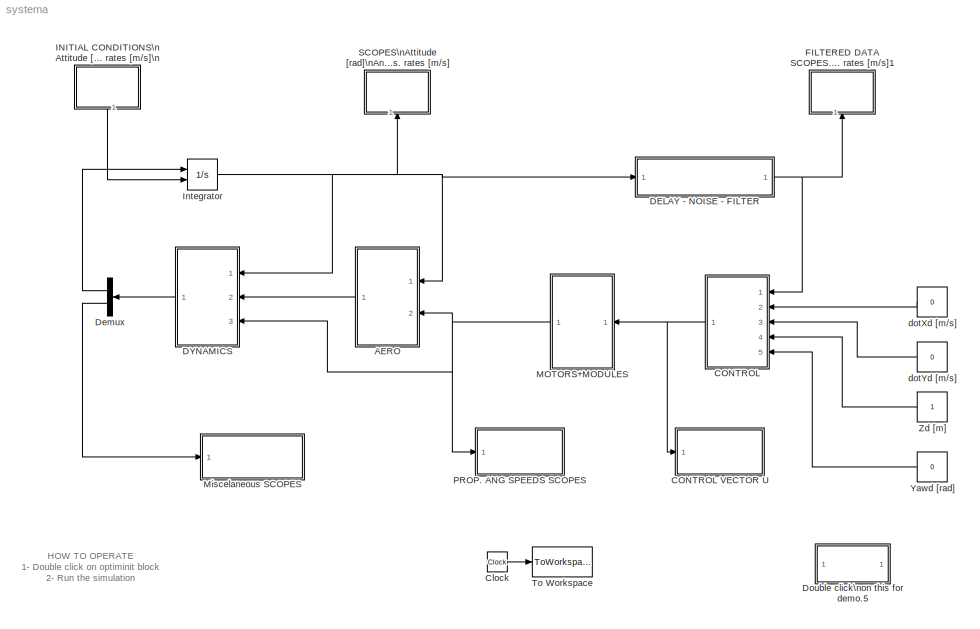
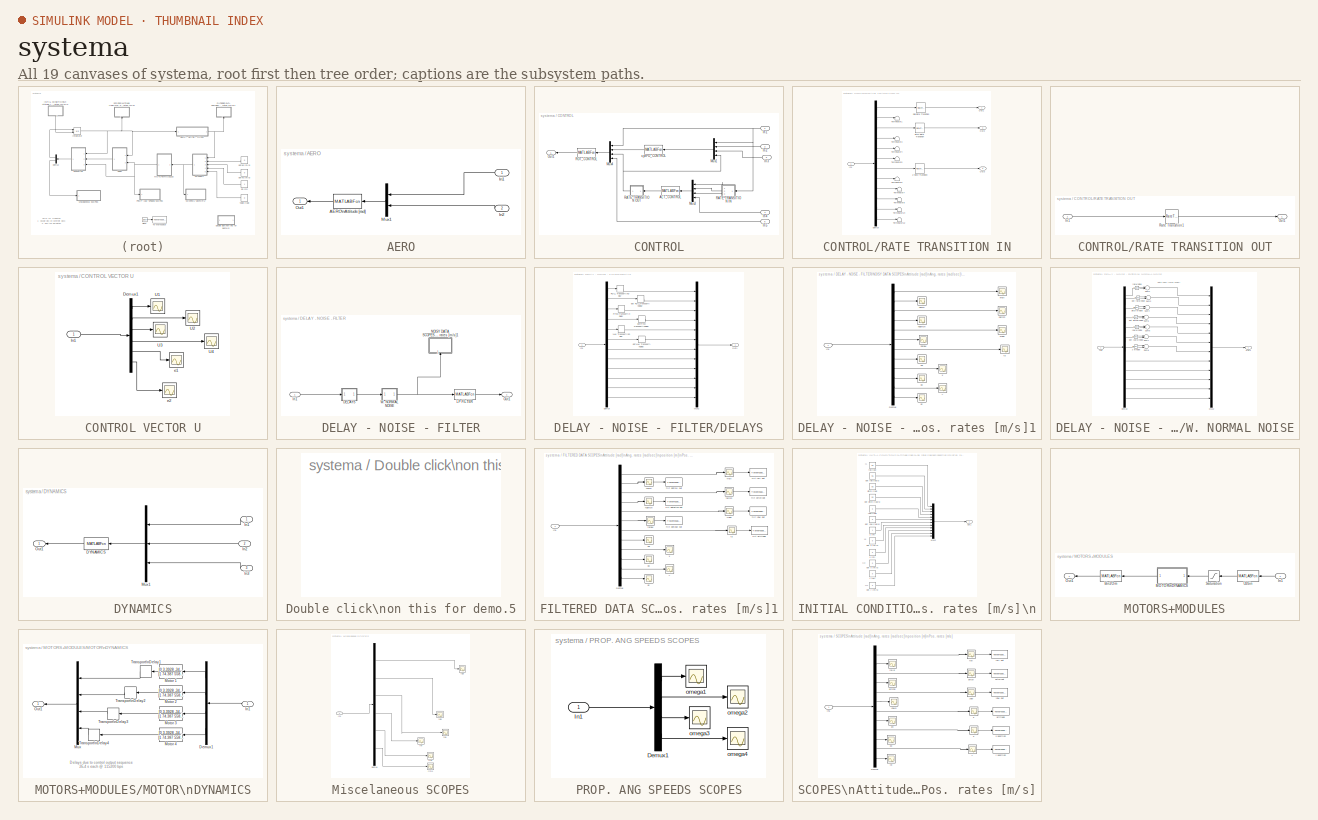
[diagram: thumbnail index - all 19 canvases of the model, root first then tree order]
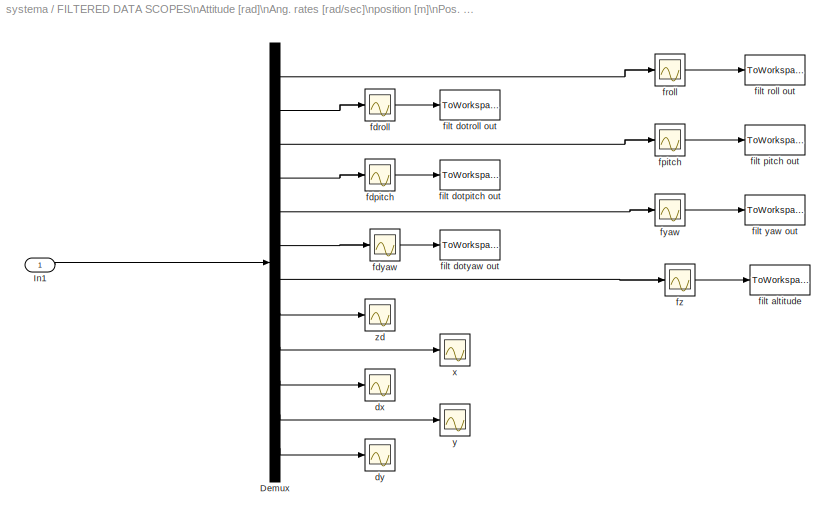
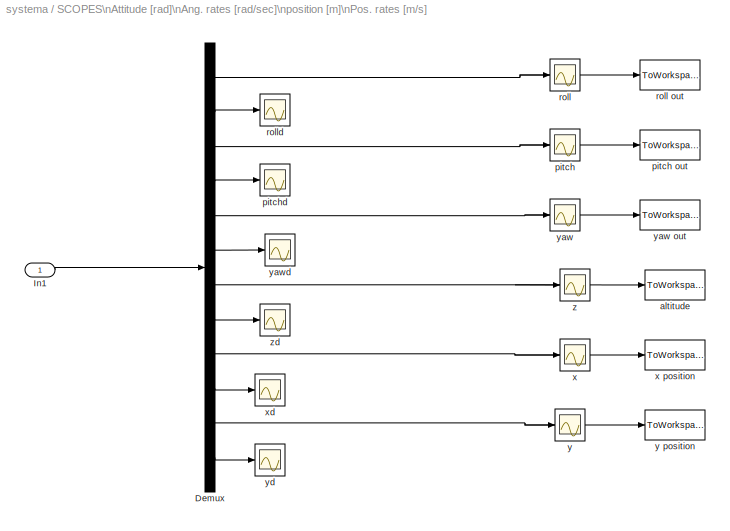
MODEL systema
KIND model
BLOCK [SubSystem] AERO
  MaskHideContents = off
  MinAlgLoopOccurrences = off
  Ports = [2, 1]
  RTWSystemCode = Auto
  TreatAsAtomicUnit = off
BLOCK [MATLABFcn] AERO/AERO\nAttitude [rad]
  MATLABFcn = aero
  OutputDimensions = 24
BLOCK [Inport] AERO/In1
  IconDisplay = Port number
BLOCK [Inport] AERO/In2
  IconDisplay = Port number
  Port = 2
BLOCK [Mux] AERO/Mux1
  DisplayOption = bar
  Inputs = 2
  Ports = [2, 1]
BLOCK [Outport] AERO/Out1
  BusOutputAsStruct = off
  IconDisplay = Port number
BLOCK [SubSystem] CONTROL
  MaskHideContents = off
  MinAlgLoopOccurrences = off
  Ports = [5, 1]
  RTWSystemCode = Auto
  TreatAsAtomicUnit = off
BLOCK [SubSystem] CONTROL VECTOR U
  MaskHideContents = off
  MinAlgLoopOccurrences = off
  Ports = [1]
  RTWSystemCode = Auto
  TreatAsAtomicUnit = off
BLOCK [Demux] CONTROL VECTOR U/Demux1
  Outputs = 6
  Ports = [1, 6]
BLOCK [Inport] CONTROL VECTOR U/In1
  IconDisplay = Port number
BLOCK [Scope] CONTROL VECTOR U/U1
  DataFormat = StructureWithTime
  Floating = off
  LimitDataPoints = off
  NumInputPorts = 1
  Ports = [1]
  SampleTime = 0
  SaveName = ScopeData7
  TimeRange = 3.5
  YMax = 144.104
  YMin = 144.101
BLOCK [Scope] CONTROL VECTOR U/U2
  DataFormat = StructureWithTime
  Floating = off
  LimitDataPoints = off
  NumInputPorts = 1
  Ports = [1]
  SampleTime = 0
  SaveName = ScopeData8
  YMax = 0.4
  YMin = -0.6
BLOCK [Scope] CONTROL VECTOR U/U3
  DataFormat = StructureWithTime
  Floating = off
  LimitDataPoints = off
  NumInputPorts = 1
  Ports = [1]
  SampleTime = 0
  SaveName = ScopeData9
  YMax = 0.35
  YMin = -0.65
BLOCK [Scope] CONTROL VECTOR U/U4
  DataFormat = StructureWithTime
  Floating = off
  LimitDataPoints = off
  NumInputPorts = 1
  Ports = [1]
  SampleTime = 0
  SaveName = ScopeData14
  YMax = 150
  YMin = 0
BLOCK [Scope] CONTROL VECTOR U/e1
  DataFormat = StructureWithTime
  Floating = off
  LimitDataPoints = off
  NumInputPorts = 1
  Ports = [1]
  SampleTime = 0
  SaveName = ScopeData11
  YMax = 150
  YMin = 0
BLOCK [Scope] CONTROL VECTOR U/e2
  DataFormat = StructureWithTime
  Floating = off
  LimitDataPoints = off
  NumInputPorts = 1
  Ports = [1]
  SampleTime = 0
  SaveName = ScopeData12
  YMax = 150
  YMin = 0
BLOCK [MATLABFcn] CONTROL/ALT_CONTROL
  MATLABFcn = alt_control
  OutputDimensions = 1
  SampleTime = 0.05
BLOCK [Inport] CONTROL/In1
  IconDisplay = Port number
BLOCK [Inport] CONTROL/In2
  IconDisplay = Port number
  Port = 2
BLOCK [Inport] CONTROL/In3
  IconDisplay = Port number
  Port = 3
BLOCK [Inport] CONTROL/In4
  IconDisplay = Port number
  Port = 4
BLOCK [Inport] CONTROL/In5
  IconDisplay = Port number
  Port = 5
BLOCK [Mux] CONTROL/Mux1
  DisplayOption = bar
  Ports = [4, 1]
BLOCK [Mux] CONTROL/Mux3
  DisplayOption = bar
  Ports = [4, 1]
BLOCK [Mux] CONTROL/Mux4
  DisplayOption = bar
  Ports = [4, 1]
BLOCK [Outport] CONTROL/Out1
  BusOutputAsStruct = off
  IconDisplay = Port number
BLOCK [SubSystem] CONTROL/RATE TRANSITION IN
  MaskHideContents = off
  MinAlgLoopOccurrences = off
  Ports = [1, 3]
  RTWSystemCode = Auto
  TreatAsAtomicUnit = off
BLOCK [Demux] CONTROL/RATE TRANSITION IN/Demux
  Outputs = 12
  Ports = [1, 12]
BLOCK [Inport] CONTROL/RATE TRANSITION IN/In1
  IconDisplay = Port number
BLOCK [Outport] CONTROL/RATE TRANSITION IN/Out1
  BusOutputAsStruct = off
  IconDisplay = Port number
BLOCK [Outport] CONTROL/RATE TRANSITION IN/Out2
  BusOutputAsStruct = off
  IconDisplay = Port number
  Port = 2
BLOCK [Outport] CONTROL/RATE TRANSITION IN/Out3
  BusOutputAsStruct = off
  IconDisplay = Port number
  Port = 3
BLOCK [RateTransition] CONTROL/RATE TRANSITION IN/Pitch Rate Transition
  Deterministic = off
  OutPortSampleTime = 50E-3
BLOCK [RateTransition] CONTROL/RATE TRANSITION IN/Roll Rate Transition
  Deterministic = off
  OutPortSampleTime = 50E-3
BLOCK [Terminator] CONTROL/RATE TRANSITION IN/Terminator1
BLOCK [Terminator] CONTROL/RATE TRANSITION IN/Terminator12
BLOCK [Terminator] CONTROL/RATE TRANSITION IN/Terminator14
BLOCK [Terminator] CONTROL/RATE TRANSITION IN/Terminator3
BLOCK [Terminator] CONTROL/RATE TRANSITION IN/Terminator4
BLOCK [Terminator] CONTROL/RATE TRANSITION IN/Terminator5
BLOCK [Terminator] CONTROL/RATE TRANSITION IN/Terminator6
BLOCK [Terminator] CONTROL/RATE TRANSITION IN/Terminator7
BLOCK [Terminator] CONTROL/RATE TRANSITION IN/Terminator8
BLOCK [RateTransition] CONTROL/RATE TRANSITION IN/Z Rate Transition
  Deterministic = off
  OutPortSampleTime = 50E-3
BLOCK [SubSystem] CONTROL/RATE TRANSITION OUT
  MaskHideContents = off
  MinAlgLoopOccurrences = off
  Ports = [1, 1]
  RTWSystemCode = Auto
  TreatAsAtomicUnit = off
BLOCK [Inport] CONTROL/RATE TRANSITION OUT/In1
  IconDisplay = Port number
BLOCK [Outport] CONTROL/RATE TRANSITION OUT/Out1
  BusOutputAsStruct = off
  IconDisplay = Port number
BLOCK [RateTransition] CONTROL/RATE TRANSITION OUT/Rate Transition1
  Deterministic = off
BLOCK [MATLABFcn] CONTROL/ROT_CONTROL
  MATLABFcn = back_rot_control
  OutputDimensions = 6
BLOCK [MATLABFcn] CONTROL/x,ySPD_CONTROL
  MATLABFcn = spd_control
  OutputDimensions = 2
BLOCK [Clock] Clock
  Decimation = 10
BLOCK [SubSystem] DELAY - NOISE - FILTER
  MaskHideContents = off
  MinAlgLoopOccurrences = off
  Ports = [1, 1]
  RTWSystemCode = Auto
  TreatAsAtomicUnit = off
BLOCK [SubSystem] DELAY - NOISE - FILTER/DELAYS
  MaskHideContents = off
  MinAlgLoopOccurrences = off
  Ports = [1, 1]
  RTWSystemCode = Auto
  TreatAsAtomicUnit = off
BLOCK [Demux] DELAY - NOISE - FILTER/DELAYS/Demux
  Outputs = 12
  Ports = [1, 12]
BLOCK [Inport] DELAY - NOISE - FILTER/DELAYS/In1
  IconDisplay = Port number
BLOCK [Mux] DELAY - NOISE - FILTER/DELAYS/Mux2
  DisplayOption = bar
  Inputs = 12
  Ports = [12, 1]
BLOCK [Outport] DELAY - NOISE - FILTER/DELAYS/Out1
  BusOutputAsStruct = off
  IconDisplay = Port number
BLOCK [TransportDelay] DELAY - NOISE - FILTER/DELAYS/PITCH Transport\nDelay
  DelayTime = 8E-3
BLOCK [TransportDelay] DELAY - NOISE - FILTER/DELAYS/ROLL Transport\nDelay
  DelayTime = 8E-3
BLOCK [TransportDelay] DELAY - NOISE - FILTER/DELAYS/YAW Transport\nDelay
  DelayTime = 8E-3
BLOCK [TransportDelay] DELAY - NOISE - FILTER/DELAYS/dot ROLLTransport\nDelay
  DelayTime = 4.5E-3
BLOCK [TransportDelay] DELAY - NOISE - FILTER/DELAYS/dotPITCH Transport\nDelay
  DelayTime = 4.5E-3
BLOCK [TransportDelay] DELAY - NOISE - FILTER/DELAYS/dotYAW Transport\nDelay
  DelayTime = 4.5E-3
BLOCK [Inport] DELAY - NOISE - FILTER/In1
  IconDisplay = Port number
BLOCK [MATLABFcn] DELAY - NOISE - FILTER/LP FILTER
  MATLABFcn = sam5_filter
  OutputDimensions = 12
  OutputSignalType = real
BLOCK [SubSystem] DELAY - NOISE - FILTER/NOISY DATA SCOPES\nAttitude [rad]\nAng. rates [rad//sec]\nposition [m]\nPos. rates [m//s]1
  MaskHideContents = off
  MinAlgLoopOccurrences = off
  Ports = [1]
  RTWSystemCode = Auto
  TreatAsAtomicUnit = off
BLOCK [Demux] DELAY - NOISE - FILTER/NOISY DATA SCOPES\nAttitude [rad]\nAng. rates [rad//sec]\nposition [m]\nPos. rates [m//s]1/Demux
  Outputs = 12
  Ports = [1, 12]
BLOCK [Inport] DELAY - NOISE - FILTER/NOISY DATA SCOPES\nAttitude [rad]\nAng. rates [rad//sec]\nposition [m]\nPos. rates [m//s]1/In1
  IconDisplay = Port number
BLOCK [Scope] DELAY - NOISE - FILTER/NOISY DATA SCOPES\nAttitude [rad]\nAng. rates [rad//sec]\nposition [m]\nPos. rates [m//s]1/dx
  DataFormat = StructureWithTime
  Floating = off
  LimitDataPoints = off
  NumInputPorts = 1
  Ports = [1]
  SampleTime = 0
  SaveName = ScopeData5
  TimeRange = 5
  YMax = 0.009
  YMin = 0
BLOCK [Scope] DELAY - NOISE - FILTER/NOISY DATA SCOPES\nAttitude [rad]\nAng. rates [rad//sec]\nposition [m]\nPos. rates [m//s]1/dy
  DataFormat = StructureWithTime
  Floating = off
  LimitDataPoints = off
  NumInputPorts = 1
  Ports = [1]
  SampleTime = 0
  SaveName = ScopeData10
  TimeRange = 5
  YMax = 0.009
  YMin = 0
BLOCK [Scope] DELAY - NOISE - FILTER/NOISY DATA SCOPES\nAttitude [rad]\nAng. rates [rad//sec]\nposition [m]\nPos. rates [m//s]1/fz
  DataFormat = StructureWithTime
  Floating = off
  LimitDataPoints = off
  NumInputPorts = 1
  Ports = [1]
  SampleTime = 0
  SaveName = ScopeData17
  TimeRange = 5
  YMax = 0.009
  YMin = 0
BLOCK [Scope] DELAY - NOISE - FILTER/NOISY DATA SCOPES\nAttitude [rad]\nAng. rates [rad//sec]\nposition [m]\nPos. rates [m//s]1/ndpitch
  DataFormat = StructureWithTime
  Floating = off
  LimitDataPoints = off
  NumInputPorts = 1
  Ports = [1]
  SampleTime = 0
  SaveName = ScopeData15
  YMax = 2250
  YMin = -2250
BLOCK [Scope] DELAY - NOISE - FILTER/NOISY DATA SCOPES\nAttitude [rad]\nAng. rates [rad//sec]\nposition [m]\nPos. rates [m//s]1/ndroll
  DataFormat = StructureWithTime
  Floating = off
  LimitDataPoints = off
  NumInputPorts = 1
  Ports = [1]
  SampleTime = 0
  SaveName = ScopeData14
  YMax = -0.05
  YMin = -0.25
BLOCK [Scope] DELAY - NOISE - FILTER/NOISY DATA SCOPES\nAttitude [rad]\nAng. rates [rad//sec]\nposition [m]\nPos. rates [m//s]1/ndyaw
  DataFormat = StructureWithTime
  Floating = off
  LimitDataPoints = off
  NumInputPorts = 1
  Ports = [1]
  SampleTime = 0
  SaveName = ScopeData16
  TimeRange = 18
  YMax = 200
  YMin = -200
BLOCK [Scope] DELAY - NOISE - FILTER/NOISY DATA SCOPES\nAttitude [rad]\nAng. rates [rad//sec]\nposition [m]\nPos. rates [m//s]1/npitch
  DataFormat = StructureWithTime
  Floating = off
  LimitDataPoints = off
  NumInputPorts = 1
  Ports = [1]
  SampleTime = 0
  SaveName = ScopeData1
  TimeRange = 4
  YMax = 1
  YMin = -1
BLOCK [Scope] DELAY - NOISE - FILTER/NOISY DATA SCOPES\nAttitude [rad]\nAng. rates [rad//sec]\nposition [m]\nPos. rates [m//s]1/nroll
  DataFormat = StructureWithTime
  Floating = off
  LimitDataPoints = off
  NumInputPorts = 1
  Ports = [1]
  SampleTime = 0
  TimeRange = 0.25
  YMax = 1
  YMin = -1
BLOCK [Scope] DELAY - NOISE - FILTER/NOISY DATA SCOPES\nAttitude [rad]\nAng. rates [rad//sec]\nposition [m]\nPos. rates [m//s]1/nyaw
  DataFormat = StructureWithTime
  Floating = off
  LimitDataPoints = off
  NumInputPorts = 1
  Ports = [1]
  SampleTime = 0
  SaveName = ScopeData2
  TimeRange = 5
  YMax = 0.22
  YMin = 0
BLOCK [Scope] DELAY - NOISE - FILTER/NOISY DATA SCOPES\nAttitude [rad]\nAng. rates [rad//sec]\nposition [m]\nPos. rates [m//s]1/x
  DataFormat = StructureWithTime
  Floating = off
  LimitDataPoints = off
  NumInputPorts = 1
  Ports = [1]
  SampleTime = 0
  SaveName = ScopeData4
  TimeRange = 5
  YMax = 0.009
  YMin = 0
BLOCK [Scope] DELAY - NOISE - FILTER/NOISY DATA SCOPES\nAttitude [rad]\nAng. rates [rad//sec]\nposition [m]\nPos. rates [m//s]1/y
  DataFormat = StructureWithTime
  Floating = off
  LimitDataPoints = off
  NumInputPorts = 1
  Ports = [1]
  SampleTime = 0
  SaveName = ScopeData6
  TimeRange = 5
  YMax = 0.009
  YMin = 0
BLOCK [Scope] DELAY - NOISE - FILTER/NOISY DATA SCOPES\nAttitude [rad]\nAng. rates [rad//sec]\nposition [m]\nPos. rates [m//s]1/zd
  DataFormat = StructureWithTime
  Floating = off
  LimitDataPoints = off
  NumInputPorts = 1
  Ports = [1]
  SampleTime = 0
  SaveName = ScopeData18
  TimeRange = 10
  YMax = -107.25
  YMin = -110.5
BLOCK [Outport] DELAY - NOISE - FILTER/Out1
  BusOutputAsStruct = off
  IconDisplay = Port number
BLOCK [SubSystem] DELAY - NOISE - FILTER/W. NORMAL NOISE
  MaskHideContents = off
  MinAlgLoopOccurrences = off
  Ports = [1, 1]
  RTWSystemCode = Auto
  TreatAsAtomicUnit = off
BLOCK [Demux] DELAY - NOISE - FILTER/W. NORMAL NOISE/Demux
  Outputs = 12
  Ports = [1, 12]
BLOCK [Inport] DELAY - NOISE - FILTER/W. NORMAL NOISE/In1
  IconDisplay = Port number
BLOCK [Mux] DELAY - NOISE - FILTER/W. NORMAL NOISE/Mux2
  DisplayOption = bar
  Inputs = 12
  Ports = [12, 1]
BLOCK [Outport] DELAY - NOISE - FILTER/W. NORMAL NOISE/Out1
  BusOutputAsStruct = off
  IconDisplay = Port number
BLOCK [Sum] DELAY - NOISE - FILTER/W. NORMAL NOISE/Sum1
  IconShape = round
  InputSameDT = off
  Inputs = |++
  OutDataTypeMode = Inherit via internal rule
  Ports = [2, 1]
BLOCK [Sum] DELAY - NOISE - FILTER/W. NORMAL NOISE/Sum2
  IconShape = round
  InputSameDT = off
  Inputs = |++
  OutDataTypeMode = Inherit via internal rule
  Ports = [2, 1]
BLOCK [Sum] DELAY - NOISE - FILTER/W. NORMAL NOISE/Sum4
  IconShape = round
  InputSameDT = off
  Inputs = |++
  OutDataTypeMode = Inherit via internal rule
  Ports = [2, 1]
BLOCK [Sum] DELAY - NOISE - FILTER/W. NORMAL NOISE/Sum5
  IconShape = round
  InputSameDT = off
  Inputs = |++
  OutDataTypeMode = Inherit via internal rule
  Ports = [2, 1]
BLOCK [Sum] DELAY - NOISE - FILTER/W. NORMAL NOISE/Sum6
  IconShape = round
  InputSameDT = off
  Inputs = |++
  OutDataTypeMode = Inherit via internal rule
  Ports = [2, 1]
BLOCK [Sum] DELAY - NOISE - FILTER/W. NORMAL NOISE/Sum7
  IconShape = round
  InputSameDT = off
  Inputs = |++
  OutDataTypeMode = Inherit via internal rule
  Ports = [2, 1]
BLOCK [Sum] DELAY - NOISE - FILTER/W. NORMAL NOISE/Sum8
  IconShape = round
  InputSameDT = off
  Inputs = |++
  OutDataTypeMode = Inherit via internal rule
  Ports = [2, 1]
BLOCK [Reference] DELAY - NOISE - FILTER/W. NORMAL NOISE/dot pitchw noise  REF=simulink/Sources/Band-Limited\nWhite Noise
  Cov = [0.0001]
  Ports = [0, 1]
  ShowPortLabels = on
  SourceBlock = simulink/Sources/Band-Limited\nWhite Noise
  SourceType = Band-Limited White Noise.
  Ts = 0.01
  VectorParams1D = on
  seed = [23341]
BLOCK [Reference] DELAY - NOISE - FILTER/W. NORMAL NOISE/dot roll w noise  REF=simulink/Sources/Band-Limited\nWhite Noise
  Cov = [0.0001]
  Ports = [0, 1]
  ShowPortLabels = on
  SourceBlock = simulink/Sources/Band-Limited\nWhite Noise
  SourceType = Band-Limited White Noise.
  Ts = 0.01
  VectorParams1D = on
  seed = [23341]
BLOCK [Reference] DELAY - NOISE - FILTER/W. NORMAL NOISE/dot yaw w noise  REF=simulink/Sources/Band-Limited\nWhite Noise
  Cov = [0.0001]
  Ports = [0, 1]
  ShowPortLabels = on
  SourceBlock = simulink/Sources/Band-Limited\nWhite Noise
  SourceType = Band-Limited White Noise.
  Ts = 0.01
  VectorParams1D = on
  seed = [23341]
BLOCK [Reference] DELAY - NOISE - FILTER/W. NORMAL NOISE/pitch w noise  REF=simulink/Sources/Band-Limited\nWhite Noise
  Cov = [0.00001]
  Ports = [0, 1]
  ShowPortLabels = on
  SourceBlock = simulink/Sources/Band-Limited\nWhite Noise
  SourceType = Band-Limited White Noise.
  Ts = 0.01
  VectorParams1D = on
  seed = [23341]
BLOCK [Reference] DELAY - NOISE - FILTER/W. NORMAL NOISE/roll w noise  REF=simulink/Sources/Band-Limited\nWhite Noise
  Cov = [0.00001]
  Ports = [0, 1]
  ShowPortLabels = on
  SourceBlock = simulink/Sources/Band-Limited\nWhite Noise
  SourceType = Band-Limited White Noise.
  Ts = 0.01
  VectorParams1D = on
  seed = [24431]
BLOCK [Reference] DELAY - NOISE - FILTER/W. NORMAL NOISE/yaw w noise  REF=simulink/Sources/Band-Limited\nWhite Noise
  Cov = [0.00001]
  Ports = [0, 1]
  ShowPortLabels = on
  SourceBlock = simulink/Sources/Band-Limited\nWhite Noise
  SourceType = Band-Limited White Noise.
  Ts = 0.01
  VectorParams1D = on
  seed = [23341]
BLOCK [Reference] DELAY - NOISE - FILTER/W. NORMAL NOISE/z w noise  REF=simulink/Sources/Band-Limited\nWhite Noise
  Cov = [0.00001]
  Ports = [0, 1]
  ShowPortLabels = on
  SourceBlock = simulink/Sources/Band-Limited\nWhite Noise
  SourceType = Band-Limited White Noise.
  Ts = 0.01
  VectorParams1D = on
  seed = [23341]
BLOCK [SubSystem] DYNAMICS
  MaskHideContents = off
  MinAlgLoopOccurrences = off
  Ports = [3, 1]
  RTWSystemCode = Auto
  TreatAsAtomicUnit = off
BLOCK [MATLABFcn] DYNAMICS/DYNAMICS
  MATLABFcn = dinamica
  OutputDimensions = 18
BLOCK [Inport] DYNAMICS/In1
  IconDisplay = Port number
BLOCK [Inport] DYNAMICS/In2
  IconDisplay = Port number
  Port = 2
BLOCK [Inport] DYNAMICS/In3
  IconDisplay = Port number
  Port = 3
BLOCK [Mux] DYNAMICS/Mux1
  DisplayOption = bar
  Inputs = 3
  Ports = [3, 1]
BLOCK [Outport] DYNAMICS/Out1
  BusOutputAsStruct = off
  IconDisplay = Port number
BLOCK [Demux] Demux
  Outputs = 2
  Ports = [1, 2]
BLOCK [SubSystem] Double click\non this for demo.5
  MaskDisplay = disp('optsiminit')
  MaskHideContents = off
  MaskIconFrame = on
  MaskIconOpaque = on
  MaskIconRotate = none
  MaskIconUnits = autoscale
  MinAlgLoopOccurrences = off
  OpenFcn = optsiminit
  Ports = []
  RTWSystemCode = Auto
  TreatAsAtomicUnit = off
BLOCK [SubSystem] FILTERED DATA SCOPES\nAttitude [rad]\nAng. rates [rad//sec]\nposition [m]\nPos. rates [m//s]1
  MaskHideContents = off
  MinAlgLoopOccurrences = off
  Ports = [1]
  RTWSystemCode = Auto
  TreatAsAtomicUnit = off
BLOCK [Demux] FILTERED DATA SCOPES\nAttitude [rad]\nAng. rates [rad//sec]\nposition [m]\nPos. rates [m//s]1/Demux
  Outputs = 12
  Ports = [1, 12]
BLOCK [Inport] FILTERED DATA SCOPES\nAttitude [rad]\nAng. rates [rad//sec]\nposition [m]\nPos. rates [m//s]1/In1
  IconDisplay = Port number
BLOCK [Scope] FILTERED DATA SCOPES\nAttitude [rad]\nAng. rates [rad//sec]\nposition [m]\nPos. rates [m//s]1/dx
  DataFormat = StructureWithTime
  Floating = off
  LimitDataPoints = off
  NumInputPorts = 1
  Ports = [1]
  SampleTime = 0
  SaveName = ScopeData5
  TimeRange = 5
  YMax = 0.009
  YMin = 0
BLOCK [Scope] FILTERED DATA SCOPES\nAttitude [rad]\nAng. rates [rad//sec]\nposition [m]\nPos. rates [m//s]1/dy
  DataFormat = StructureWithTime
  Floating = off
  LimitDataPoints = off
  NumInputPorts = 1
  Ports = [1]
  SampleTime = 0
  SaveName = ScopeData10
  TimeRange = 5
  YMax = 0.009
  YMin = 0
BLOCK [Scope] FILTERED DATA SCOPES\nAttitude [rad]\nAng. rates [rad//sec]\nposition [m]\nPos. rates [m//s]1/fdpitch
  DataFormat = StructureWithTime
  Floating = off
  LimitDataPoints = off
  NumInputPorts = 1
  Ports = [1]
  SampleTime = 0
  SaveName = ScopeData15
  YMax = 2250
  YMin = -2250
BLOCK [Scope] FILTERED DATA SCOPES\nAttitude [rad]\nAng. rates [rad//sec]\nposition [m]\nPos. rates [m//s]1/fdroll
  DataFormat = StructureWithTime
  Floating = off
  LimitDataPoints = off
  NumInputPorts = 1
  Ports = [1]
  SampleTime = 0
  SaveName = ScopeData14
  YMax = -0.05
  YMin = -0.25
BLOCK [Scope] FILTERED DATA SCOPES\nAttitude [rad]\nAng. rates [rad//sec]\nposition [m]\nPos. rates [m//s]1/fdyaw
  DataFormat = StructureWithTime
  Floating = off
  LimitDataPoints = off
  NumInputPorts = 1
  Ports = [1]
  SampleTime = 0
  SaveName = ScopeData16
  TimeRange = 18
  YMax = 200
  YMin = -200
BLOCK [ToWorkspace] FILTERED DATA SCOPES\nAttitude [rad]\nAng. rates [rad//sec]\nposition [m]\nPos. rates [m//s]1/filt altitude
  MaxDataPoints = inf
  SampleTime = -1
  SaveFormat = Array
  VariableName = fz
BLOCK [ToWorkspace] FILTERED DATA SCOPES\nAttitude [rad]\nAng. rates [rad//sec]\nposition [m]\nPos. rates [m//s]1/filt dotpitch out
  MaxDataPoints = inf
  SampleTime = -1
  SaveFormat = Array
  VariableName = dotfpitch
BLOCK [ToWorkspace] FILTERED DATA SCOPES\nAttitude [rad]\nAng. rates [rad//sec]\nposition [m]\nPos. rates [m//s]1/filt dotroll out
  MaxDataPoints = inf
  SampleTime = -1
  SaveFormat = Array
  VariableName = dotfroll
BLOCK [ToWorkspace] FILTERED DATA SCOPES\nAttitude [rad]\nAng. rates [rad//sec]\nposition [m]\nPos. rates [m//s]1/filt dotyaw out
  MaxDataPoints = inf
  SampleTime = -1
  SaveFormat = Array
  VariableName = dotfyaw
BLOCK [ToWorkspace] FILTERED DATA SCOPES\nAttitude [rad]\nAng. rates [rad//sec]\nposition [m]\nPos. rates [m//s]1/filt pitch out
  MaxDataPoints = inf
  SampleTime = -1
  SaveFormat = Array
  VariableName = fpitch
BLOCK [ToWorkspace] FILTERED DATA SCOPES\nAttitude [rad]\nAng. rates [rad//sec]\nposition [m]\nPos. rates [m//s]1/filt roll out
  MaxDataPoints = inf
  SampleTime = -1
  SaveFormat = Array
  VariableName = froll
BLOCK [ToWorkspace] FILTERED DATA SCOPES\nAttitude [rad]\nAng. rates [rad//sec]\nposition [m]\nPos. rates [m//s]1/filt yaw out
  MaxDataPoints = inf
  SampleTime = -1
  SaveFormat = Array
  VariableName = fyaw
BLOCK [Scope] FILTERED DATA SCOPES\nAttitude [rad]\nAng. rates [rad//sec]\nposition [m]\nPos. rates [m//s]1/fpitch
  DataFormat = StructureWithTime
  Floating = off
  LimitDataPoints = off
  NumInputPorts = 1
  Ports = [1]
  SampleTime = 0
  SaveName = ScopeData1
  TimeRange = 4
  YMax = 1
  YMin = -1
BLOCK [Scope] FILTERED DATA SCOPES\nAttitude [rad]\nAng. rates [rad//sec]\nposition [m]\nPos. rates [m//s]1/froll
  DataFormat = StructureWithTime
  Floating = off
  LimitDataPoints = off
  NumInputPorts = 1
  Ports = [1]
  SampleTime = 0
  TimeRange = 0.25
  YMax = 1
  YMin = -1
BLOCK [Scope] FILTERED DATA SCOPES\nAttitude [rad]\nAng. rates [rad//sec]\nposition [m]\nPos. rates [m//s]1/fyaw
  DataFormat = StructureWithTime
  Floating = off
  LimitDataPoints = off
  NumInputPorts = 1
  Ports = [1]
  SampleTime = 0
  SaveName = ScopeData2
  TimeRange = 5
  YMax = 0.22
  YMin = 0
BLOCK [Scope] FILTERED DATA SCOPES\nAttitude [rad]\nAng. rates [rad//sec]\nposition [m]\nPos. rates [m//s]1/fz
  DataFormat = StructureWithTime
  Floating = off
  LimitDataPoints = off
  NumInputPorts = 1
  Ports = [1]
  SampleTime = 0
  SaveName = ScopeData17
  TimeRange = 5
  YMax = 0.5
  YMin = -0.45
BLOCK [Scope] FILTERED DATA SCOPES\nAttitude [rad]\nAng. rates [rad//sec]\nposition [m]\nPos. rates [m//s]1/x
  DataFormat = StructureWithTime
  Floating = off
  LimitDataPoints = off
  NumInputPorts = 1
  Ports = [1]
  SampleTime = 0
  SaveName = ScopeData4
  TimeRange = 5
  YMax = 0.009
  YMin = 0
BLOCK [Scope] FILTERED DATA SCOPES\nAttitude [rad]\nAng. rates [rad//sec]\nposition [m]\nPos. rates [m//s]1/y
  DataFormat = StructureWithTime
  Floating = off
  LimitDataPoints = off
  NumInputPorts = 1
  Ports = [1]
  SampleTime = 0
  SaveName = ScopeData6
  TimeRange = 5
  YMax = 0.009
  YMin = 0
BLOCK [Scope] FILTERED DATA SCOPES\nAttitude [rad]\nAng. rates [rad//sec]\nposition [m]\nPos. rates [m//s]1/zd
  DataFormat = StructureWithTime
  Floating = off
  LimitDataPoints = off
  NumInputPorts = 1
  Ports = [1]
  SampleTime = 0
  SaveName = ScopeData18
  TimeRange = 10
  YMax = -107.25
  YMin = -110.5
BLOCK [SubSystem] INITIAL CONDITIONS\nAttitude [rad]\nAng. rates [rad//sec]\nposition [m]\nPos. rates [m//s]\n
  MaskHideContents = off
  MinAlgLoopOccurrences = off
  Ports = [0, 1]
  RTWSystemCode = Auto
  TreatAsAtomicUnit = off
BLOCK [Mux] INITIAL CONDITIONS\nAttitude [rad]\nAng. rates [rad//sec]\nposition [m]\nPos. rates [m//s]\n/Mux2
  DisplayOption = bar
  Inputs = 12
  Ports = [12, 1]
BLOCK [Outport] INITIAL CONDITIONS\nAttitude [rad]\nAng. rates [rad//sec]\nposition [m]\nPos. rates [m//s]\n/Out1
  BusOutputAsStruct = off
  IconDisplay = Port number
BLOCK [Constant] INITIAL CONDITIONS\nAttitude [rad]\nAng. rates [rad//sec]\nposition [m]\nPos. rates [m//s]\n/dot pitch [rad//s]
  Value = 0.5
BLOCK [Constant] INITIAL CONDITIONS\nAttitude [rad]\nAng. rates [rad//sec]\nposition [m]\nPos. rates [m//s]\n/dot roll [rad//s]
  Value = 0.5
BLOCK [Constant] INITIAL CONDITIONS\nAttitude [rad]\nAng. rates [rad//sec]\nposition [m]\nPos. rates [m//s]\n/dot x [m//s]
  Value = 0
BLOCK [Constant] INITIAL CONDITIONS\nAttitude [rad]\nAng. rates [rad//sec]\nposition [m]\nPos. rates [m//s]\n/dot y [m//s]
  Value = 0
BLOCK [Constant] INITIAL CONDITIONS\nAttitude [rad]\nAng. rates [rad//sec]\nposition [m]\nPos. rates [m//s]\n/dot yaw [rad//s]
  Value = 0
BLOCK [Constant] INITIAL CONDITIONS\nAttitude [rad]\nAng. rates [rad//sec]\nposition [m]\nPos. rates [m//s]\n/dot z  [m//s]
  Value = 0
BLOCK [Constant] INITIAL CONDITIONS\nAttitude [rad]\nAng. rates [rad//sec]\nposition [m]\nPos. rates [m//s]\n/pitch [rad]
  Value = 0.5
BLOCK [Constant] INITIAL CONDITIONS\nAttitude [rad]\nAng. rates [rad//sec]\nposition [m]\nPos. rates [m//s]\n/roll [rad]
  Value = 0.5
BLOCK [Constant] INITIAL CONDITIONS\nAttitude [rad]\nAng. rates [rad//sec]\nposition [m]\nPos. rates [m//s]\n/x [m]
  Value = 0
BLOCK [Constant] INITIAL CONDITIONS\nAttitude [rad]\nAng. rates [rad//sec]\nposition [m]\nPos. rates [m//s]\n/y [m]
  Value = 0
BLOCK [Constant] INITIAL CONDITIONS\nAttitude [rad]\nAng. rates [rad//sec]\nposition [m]\nPos. rates [m//s]\n/yaw [rad]
  Value = 0
BLOCK [Constant] INITIAL CONDITIONS\nAttitude [rad]\nAng. rates [rad//sec]\nposition [m]\nPos. rates [m//s]\n/z [m]
BLOCK [Integrator] Integrator
  IgnoreLimit = off
  InitialConditionSource = external
  Ports = [2, 1]
BLOCK [SubSystem] MOTORS+MODULES
  MaskHideContents = off
  MinAlgLoopOccurrences = off
  Ports = [1, 1]
  RTWSystemCode = Auto
  TreatAsAtomicUnit = off
BLOCK [MATLABFcn] MOTORS+MODULES/Bin2Om
  MATLABFcn = bin2Om
  OutputDimensions = 4
  OutputSignalType = real
BLOCK [Inport] MOTORS+MODULES/In1
  IconDisplay = Port number
BLOCK [SubSystem] MOTORS+MODULES/MOTOR\nDYNAMICS
  MaskHideContents = off
  MinAlgLoopOccurrences = off
  Ports = [1, 1]
  RTWSystemCode = Auto
  TreatAsAtomicUnit = off
BLOCK [Demux] MOTORS+MODULES/MOTOR\nDYNAMICS/Demux1
  Ports = [1, 4]
BLOCK [Inport] MOTORS+MODULES/MOTOR\nDYNAMICS/In1
  IconDisplay = Port number
BLOCK [TransferFcn] MOTORS+MODULES/MOTOR\nDYNAMICS/Motor 1
  Denominator = [1 74.387 5589.7 42107]
  Numerator = [0 3.3928 -340.09 39451]
BLOCK [TransferFcn] MOTORS+MODULES/MOTOR\nDYNAMICS/Motor 2
  Denominator = [1 74.387 5589.7 42107]
  Numerator = [0 3.3928 -340.09 39451]
BLOCK [TransferFcn] MOTORS+MODULES/MOTOR\nDYNAMICS/Motor 3
  Denominator = [1 74.387 5589.7 42107]
  Numerator = [0 3.3928 -340.09 39451]
BLOCK [TransferFcn] MOTORS+MODULES/MOTOR\nDYNAMICS/Motor 4
  Denominator = [1 74.387 5589.7 42107]
  Numerator = [0 3.3928 -340.09 39451]
BLOCK [Mux] MOTORS+MODULES/MOTOR\nDYNAMICS/Mux
  DisplayOption = bar
  Ports = [4, 1]
BLOCK [Outport] MOTORS+MODULES/MOTOR\nDYNAMICS/Out1
  BusOutputAsStruct = off
  IconDisplay = Port number
BLOCK [TransportDelay] MOTORS+MODULES/MOTOR\nDYNAMICS/Transport\nDelay1
  DelayTime = 2E-4
BLOCK [TransportDelay] MOTORS+MODULES/MOTOR\nDYNAMICS/Transport\nDelay2
  DelayTime = 4E-4
BLOCK [TransportDelay] MOTORS+MODULES/MOTOR\nDYNAMICS/Transport\nDelay3
  DelayTime = 6E-4
BLOCK [TransportDelay] MOTORS+MODULES/MOTOR\nDYNAMICS/Transport\nDelay4
  DelayTime = 8E-4
BLOCK [Outport] MOTORS+MODULES/Out1
  BusOutputAsStruct = off
  IconDisplay = Port number
BLOCK [Saturate] MOTORS+MODULES/Saturation
  LowerLimit = 10
  UpperLimit = 125
BLOCK [MATLABFcn] MOTORS+MODULES/U2bin
  MATLABFcn = U2bin
  OutputDimensions = 4
  OutputSignalType = real
BLOCK [SubSystem] Miscelaneous SCOPES
  MaskHideContents = off
  MinAlgLoopOccurrences = off
  Ports = [1]
  RTWSystemCode = Auto
  TreatAsAtomicUnit = off
BLOCK [Demux] Miscelaneous SCOPES/Demux
  Outputs = 6
  Ports = [1, 6]
BLOCK [Inport] Miscelaneous SCOPES/In1
  IconDisplay = Port number
  PortDimensions = 6
BLOCK [Scope] Miscelaneous SCOPES/raa
  DataFormat = StructureWithTime
  Floating = off
  LimitDataPoints = off
  NumInputPorts = 1
  Ports = [1]
  SampleTime = 0
  SaveName = ScopeData16
  TimeRange = 18
  YMax = 200
  YMin = -200
BLOCK [Scope] Miscelaneous SCOPES/rgb
  DataFormat = StructureWithTime
  Floating = off
  LimitDataPoints = off
  NumInputPorts = 1
  Ports = [1]
  SampleTime = 0
  SaveName = ScopeData14
  YMax = -0.05
  YMin = -0.25
BLOCK [Scope] Miscelaneous SCOPES/rgp
  DataFormat = StructureWithTime
  Floating = off
  LimitDataPoints = off
  NumInputPorts = 1
  Ports = [1]
  SampleTime = 0
  SaveName = ScopeData15
  YMax = 2250
  YMin = -2250
BLOCK [Scope] Miscelaneous SCOPES/rhf
  DataFormat = StructureWithTime
  Floating = off
  LimitDataPoints = off
  NumInputPorts = 1
  Ports = [1]
  SampleTime = 0
  SaveName = ScopeData18
  TimeRange = 10
  YMax = -107.25
  YMin = -110.5
BLOCK [Scope] Miscelaneous SCOPES/rrm
  DataFormat = StructureWithTime
  Floating = off
  LimitDataPoints = off
  NumInputPorts = 1
  Ports = [1]
  SampleTime = 0
  SaveName = ScopeData25
  TimeRange = 5
  YMax = 0
  YMin = -4.75e-015
BLOCK [Scope] Miscelaneous SCOPES/rrm1
  DataFormat = StructureWithTime
  Floating = off
  LimitDataPoints = off
  NumInputPorts = 1
  Ports = [1]
  SampleTime = 0
  SaveName = ScopeData3
  TimeRange = 5
  YMax = 0
  YMin = -4.75e-015
BLOCK [SubSystem] PROP. ANG SPEEDS SCOPES
  MaskHideContents = off
  MinAlgLoopOccurrences = off
  Ports = [1]
  RTWSystemCode = Auto
  TreatAsAtomicUnit = off
BLOCK [Demux] PROP. ANG SPEEDS SCOPES/Demux1
  Ports = [1, 4]
BLOCK [Inport] PROP. ANG SPEEDS SCOPES/In1
  IconDisplay = Port number
BLOCK [Scope] PROP. ANG SPEEDS SCOPES/omega1
  DataFormat = StructureWithTime
  Floating = off
  LimitDataPoints = off
  NumInputPorts = 1
  Ports = [1]
  SampleTime = 0
  SaveName = ScopeData7
  TimeRange = 3.5
  YMax = 144.104
  YMin = 144.101
BLOCK [Scope] PROP. ANG SPEEDS SCOPES/omega2
  DataFormat = StructureWithTime
  Floating = off
  LimitDataPoints = off
  NumInputPorts = 1
  Ports = [1]
  SampleTime = 0
  SaveName = ScopeData8
  YMax = 147.5
  YMin = 142.5
BLOCK [Scope] PROP. ANG SPEEDS SCOPES/omega3
  DataFormat = StructureWithTime
  Floating = off
  LimitDataPoints = off
  NumInputPorts = 1
  Ports = [1]
  SampleTime = 0
  SaveName = ScopeData9
  YMax = 150
  YMin = 0
BLOCK [Scope] PROP. ANG SPEEDS SCOPES/omega4
  DataFormat = StructureWithTime
  Floating = off
  LimitDataPoints = off
  NumInputPorts = 1
  Ports = [1]
  SampleTime = 0
  SaveName = ScopeData14
  YMax = 150
  YMin = 0
BLOCK [SubSystem] SCOPES\nAttitude [rad]\nAng. rates [rad//sec]\nposition [m]\nPos. rates [m//s]
  MaskHideContents = off
  MinAlgLoopOccurrences = off
  Ports = [1]
  RTWSystemCode = Auto
  TreatAsAtomicUnit = off
BLOCK [Demux] SCOPES\nAttitude [rad]\nAng. rates [rad//sec]\nposition [m]\nPos. rates [m//s]/Demux
  Outputs = 12
  Ports = [1, 12]
BLOCK [Inport] SCOPES\nAttitude [rad]\nAng. rates [rad//sec]\nposition [m]\nPos. rates [m//s]/In1
  IconDisplay = Port number
BLOCK [ToWorkspace] SCOPES\nAttitude [rad]\nAng. rates [rad//sec]\nposition [m]\nPos. rates [m//s]/altitude
  MaxDataPoints = inf
  SampleTime = -1
  SaveFormat = Array
  VariableName = z
BLOCK [Scope] SCOPES\nAttitude [rad]\nAng. rates [rad//sec]\nposition [m]\nPos. rates [m//s]/pitch
  DataFormat = StructureWithTime
  Floating = off
  LimitDataPoints = off
  NumInputPorts = 1
  Ports = [1]
  SampleTime = 0
  SaveName = ScopeData1
  TimeRange = 4
  YMax = 0.16
  YMin = -0.08
BLOCK [ToWorkspace] SCOPES\nAttitude [rad]\nAng. rates [rad//sec]\nposition [m]\nPos. rates [m//s]/pitch out
  MaxDataPoints = inf
  SampleTime = -1
  SaveFormat = Array
  VariableName = pitch
BLOCK [Scope] SCOPES\nAttitude [rad]\nAng. rates [rad//sec]\nposition [m]\nPos. rates [m//s]/pitchd
  DataFormat = StructureWithTime
  Floating = off
  LimitDataPoints = off
  NumInputPorts = 1
  Ports = [1]
  SampleTime = 0
  SaveName = ScopeData15
  YMax = 1.75
  YMin = -1.75
BLOCK [Scope] SCOPES\nAttitude [rad]\nAng. rates [rad//sec]\nposition [m]\nPos. rates [m//s]/roll
  DataFormat = StructureWithTime
  Floating = off
  LimitDataPoints = off
  NumInputPorts = 1
  Ports = [1]
  SampleTime = 0
  TimeRange = 0.25
  YMax = 0.005
  YMin = -0.008
BLOCK [ToWorkspace] SCOPES\nAttitude [rad]\nAng. rates [rad//sec]\nposition [m]\nPos. rates [m//s]/roll out
  MaxDataPoints = inf
  SampleTime = -1
  SaveFormat = Array
  VariableName = roll
BLOCK [Scope] SCOPES\nAttitude [rad]\nAng. rates [rad//sec]\nposition [m]\nPos. rates [m//s]/rolld
  DataFormat = StructureWithTime
  Floating = off
  LimitDataPoints = off
  NumInputPorts = 1
  Ports = [1]
  SampleTime = 0
  SaveName = ScopeData14
  TimeRange = 7
  YMax = 0.125
  YMin = -0.15
BLOCK [Scope] SCOPES\nAttitude [rad]\nAng. rates [rad//sec]\nposition [m]\nPos. rates [m//s]/x
  DataFormat = StructureWithTime
  Floating = off
  LimitDataPoints = off
  NumInputPorts = 1
  Ports = [1]
  SampleTime = 0
  SaveName = ScopeData24
  TimeRange = 5
  YMax = 1
  YMin = -1
BLOCK [ToWorkspace] SCOPES\nAttitude [rad]\nAng. rates [rad//sec]\nposition [m]\nPos. rates [m//s]/x position
  MaxDataPoints = inf
  SampleTime = -1
  SaveFormat = Array
  VariableName = x
BLOCK [Scope] SCOPES\nAttitude [rad]\nAng. rates [rad//sec]\nposition [m]\nPos. rates [m//s]/xd
  DataFormat = StructureWithTime
  Floating = off
  LimitDataPoints = off
  NumInputPorts = 1
  Ports = [1]
  SampleTime = 0
  SaveName = ScopeData25
  TimeRange = 5
  YMax = 0
  YMin = -4.75e-015
BLOCK [Scope] SCOPES\nAttitude [rad]\nAng. rates [rad//sec]\nposition [m]\nPos. rates [m//s]/y
  DataFormat = StructureWithTime
  Floating = off
  LimitDataPoints = off
  NumInputPorts = 1
  Ports = [1]
  SampleTime = 0
  SaveName = ScopeData26
  TimeRange = 5
  YMax = 1
  YMin = -1
  ZoomMode = yonly
BLOCK [ToWorkspace] SCOPES\nAttitude [rad]\nAng. rates [rad//sec]\nposition [m]\nPos. rates [m//s]/y position
  MaxDataPoints = inf
  SampleTime = -1
  SaveFormat = Array
  VariableName = y
BLOCK [Scope] SCOPES\nAttitude [rad]\nAng. rates [rad//sec]\nposition [m]\nPos. rates [m//s]/yaw
  DataFormat = StructureWithTime
  Floating = off
  LimitDataPoints = off
  NumInputPorts = 1
  Ports = [1]
  SampleTime = 0
  SaveName = ScopeData2
  TimeRange = 5
  YMax = 0
  YMin = -175
BLOCK [ToWorkspace] SCOPES\nAttitude [rad]\nAng. rates [rad//sec]\nposition [m]\nPos. rates [m//s]/yaw out
  MaxDataPoints = inf
  SampleTime = -1
  SaveFormat = Array
  VariableName = yaw
BLOCK [Scope] SCOPES\nAttitude [rad]\nAng. rates [rad//sec]\nposition [m]\nPos. rates [m//s]/yawd
  DataFormat = StructureWithTime
  Floating = off
  LimitDataPoints = off
  NumInputPorts = 1
  Ports = [1]
  SampleTime = 0
  SaveName = ScopeData16
  TimeRange = 18
  YMax = 0.15
  YMin = -0.275
BLOCK [Scope] SCOPES\nAttitude [rad]\nAng. rates [rad//sec]\nposition [m]\nPos. rates [m//s]/yd
  DataFormat = StructureWithTime
  Floating = off
  LimitDataPoints = off
  NumInputPorts = 1
  Ports = [1]
  SampleTime = 0
  SaveName = ScopeData27
  TimeRange = 5
  YMax = -141.75
  YMin = -143.75
BLOCK [Scope] SCOPES\nAttitude [rad]\nAng. rates [rad//sec]\nposition [m]\nPos. rates [m//s]/z
  DataFormat = StructureWithTime
  Floating = off
  LimitDataPoints = off
  NumInputPorts = 1
  Ports = [1]
  SampleTime = 0
  SaveName = ScopeData17
  TimeRange = 5
  YMax = 0.009
  YMin = 0
BLOCK [Scope] SCOPES\nAttitude [rad]\nAng. rates [rad//sec]\nposition [m]\nPos. rates [m//s]/zd
  DataFormat = StructureWithTime
  Floating = off
  LimitDataPoints = off
  NumInputPorts = 1
  Ports = [1]
  SampleTime = 0
  SaveName = ScopeData18
  TimeRange = 10
  YMax = -107.25
  YMin = -110.5
BLOCK [ToWorkspace] To Workspace
  MaxDataPoints = inf
  SampleTime = -1
  SaveFormat = Array
  VariableName = time
BLOCK [Constant] Yawd [rad]
  Value = 0
BLOCK [Constant] Zd [m]
BLOCK [Constant] dotXd [m//s]
  Value = 0
BLOCK [Constant] dotYd [m//s]
  Value = 0
ANNOTATION (root): HOW TO OPERATE\n1- Double click on optiminit block\n2- Run the simulation
ANNOTATION DELAY - NOISE - FILTER/W. NORMAL NOISE: white noise (varius power)
ANNOTATION INITIAL CONDITIONS\nAttitude [rad]\nAng. rates [rad//sec]\nposition [m]\nPos. rates [m//s]\n: x1
ANNOTATION INITIAL CONDITIONS\nAttitude [rad]\nAng. rates [rad//sec]\nposition [m]\nPos. rates [m//s]\n: x10
ANNOTATION INITIAL CONDITIONS\nAttitude [rad]\nAng. rates [rad//sec]\nposition [m]\nPos. rates [m//s]\n: x12
ANNOTATION INITIAL CONDITIONS\nAttitude [rad]\nAng. rates [rad//sec]\nposition [m]\nPos. rates [m//s]\n: x8
ANNOTATION MOTORS+MODULES/MOTOR\nDYNAMICS: Delays due to control output sequence\n2E-4 s each @ 115200 bps
LINE AERO/AERO\nAttitude [rad]:1 -> AERO/Out1:1
LINE AERO/In1:1 -> AERO/Mux1:1
LINE AERO/In2:1 -> AERO/Mux1:2
LINE AERO/Mux1:1 -> AERO/AERO\nAttitude [rad]:1
LINE AERO:1 -> DYNAMICS:2
LINE CONTROL VECTOR U/Demux1:1 -> CONTROL VECTOR U/U1:1
LINE CONTROL VECTOR U/Demux1:2 -> CONTROL VECTOR U/U2:1
LINE CONTROL VECTOR U/Demux1:3 -> CONTROL VECTOR U/U3:1
LINE CONTROL VECTOR U/Demux1:4 -> CONTROL VECTOR U/U4:1
LINE CONTROL VECTOR U/Demux1:5 -> CONTROL VECTOR U/e1:1
LINE CONTROL VECTOR U/Demux1:6 -> CONTROL VECTOR U/e2:1
LINE CONTROL VECTOR U/In1:1 -> CONTROL VECTOR U/Demux1:1
LINE CONTROL/ALT_CONTROL:1 -> CONTROL/RATE TRANSITION OUT:1
NET CONTROL/In1:1 -> CONTROL/Mux1:1, CONTROL/Mux4:1, CONTROL/RATE TRANSITION IN:1
LINE CONTROL/In2:1 -> CONTROL/Mux1:2
LINE CONTROL/In3:1 -> CONTROL/Mux1:3
LINE CONTROL/In4:1 -> CONTROL/Mux3:4
LINE CONTROL/In5:1 -> CONTROL/Mux4:4
LINE CONTROL/Mux1:1 -> CONTROL/x,ySPD_CONTROL:1
LINE CONTROL/Mux3:1 -> CONTROL/ALT_CONTROL:1
LINE CONTROL/Mux4:1 -> CONTROL/ROT_CONTROL:1
LINE CONTROL/RATE TRANSITION IN/Demux:1 -> CONTROL/RATE TRANSITION IN/Roll Rate Transition:1
LINE CONTROL/RATE TRANSITION IN/Demux:10 -> CONTROL/RATE TRANSITION IN/Terminator8:1
LINE CONTROL/RATE TRANSITION IN/Demux:11 -> CONTROL/RATE TRANSITION IN/Terminator14:1
LINE CONTROL/RATE TRANSITION IN/Demux:12 -> CONTROL/RATE TRANSITION IN/Terminator12:1
LINE CONTROL/RATE TRANSITION IN/Demux:2 -> CONTROL/RATE TRANSITION IN/Terminator1:1
LINE CONTROL/RATE TRANSITION IN/Demux:3 -> CONTROL/RATE TRANSITION IN/Pitch Rate Transition:1
LINE CONTROL/RATE TRANSITION IN/Demux:4 -> CONTROL/RATE TRANSITION IN/Terminator3:1
LINE CONTROL/RATE TRANSITION IN/Demux:5 -> CONTROL/RATE TRANSITION IN/Terminator4:1
LINE CONTROL/RATE TRANSITION IN/Demux:6 -> CONTROL/RATE TRANSITION IN/Terminator5:1
LINE CONTROL/RATE TRANSITION IN/Demux:7 -> CONTROL/RATE TRANSITION IN/Z Rate Transition:1
LINE CONTROL/RATE TRANSITION IN/Demux:8 -> CONTROL/RATE TRANSITION IN/Terminator6:1
LINE CONTROL/RATE TRANSITION IN/Demux:9 -> CONTROL/RATE TRANSITION IN/Terminator7:1
LINE CONTROL/RATE TRANSITION IN/In1:1 -> CONTROL/RATE TRANSITION IN/Demux:1
LINE CONTROL/RATE TRANSITION IN/Pitch Rate Transition:1 -> CONTROL/RATE TRANSITION IN/Out2:1
LINE CONTROL/RATE TRANSITION IN/Roll Rate Transition:1 -> CONTROL/RATE TRANSITION IN/Out1:1
LINE CONTROL/RATE TRANSITION IN/Z Rate Transition:1 -> CONTROL/RATE TRANSITION IN/Out3:1
LINE CONTROL/RATE TRANSITION IN:1 -> CONTROL/Mux3:1
LINE CONTROL/RATE TRANSITION IN:2 -> CONTROL/Mux3:2
LINE CONTROL/RATE TRANSITION IN:3 -> CONTROL/Mux3:3
LINE CONTROL/RATE TRANSITION OUT/In1:1 -> CONTROL/RATE TRANSITION OUT/Rate Transition1:1
LINE CONTROL/RATE TRANSITION OUT/Rate Transition1:1 -> CONTROL/RATE TRANSITION OUT/Out1:1
NET CONTROL/RATE TRANSITION OUT:1 -> CONTROL/Mux1:4, CONTROL/Mux4:3
LINE CONTROL/ROT_CONTROL:1 -> CONTROL/Out1:1
LINE CONTROL/x,ySPD_CONTROL:1 -> CONTROL/Mux4:2
NET CONTROL:1 -> CONTROL VECTOR U:1, MOTORS+MODULES:1
LINE Clock:1 -> To Workspace:1
LINE DELAY - NOISE - FILTER/DELAYS/Demux:1 -> DELAY - NOISE - FILTER/DELAYS/ROLL Transport\nDelay:1
LINE DELAY - NOISE - FILTER/DELAYS/Demux:10 -> DELAY - NOISE - FILTER/DELAYS/Mux2:10
LINE DELAY - NOISE - FILTER/DELAYS/Demux:11 -> DELAY - NOISE - FILTER/DELAYS/Mux2:11
LINE DELAY - NOISE - FILTER/DELAYS/Demux:12 -> DELAY - NOISE - FILTER/DELAYS/Mux2:12
LINE DELAY - NOISE - FILTER/DELAYS/Demux:2 -> DELAY - NOISE - FILTER/DELAYS/dot ROLLTransport\nDelay:1
LINE DELAY - NOISE - FILTER/DELAYS/Demux:3 -> DELAY - NOISE - FILTER/DELAYS/PITCH Transport\nDelay:1
LINE DELAY - NOISE - FILTER/DELAYS/Demux:4 -> DELAY - NOISE - FILTER/DELAYS/dotPITCH Transport\nDelay:1
LINE DELAY - NOISE - FILTER/DELAYS/Demux:5 -> DELAY - NOISE - FILTER/DELAYS/YAW Transport\nDelay:1
LINE DELAY - NOISE - FILTER/DELAYS/Demux:6 -> DELAY - NOISE - FILTER/DELAYS/dotYAW Transport\nDelay:1
LINE DELAY - NOISE - FILTER/DELAYS/Demux:7 -> DELAY - NOISE - FILTER/DELAYS/Mux2:7
LINE DELAY - NOISE - FILTER/DELAYS/Demux:8 -> DELAY - NOISE - FILTER/DELAYS/Mux2:8
LINE DELAY - NOISE - FILTER/DELAYS/Demux:9 -> DELAY - NOISE - FILTER/DELAYS/Mux2:9
LINE DELAY - NOISE - FILTER/DELAYS/In1:1 -> DELAY - NOISE - FILTER/DELAYS/Demux:1
LINE DELAY - NOISE - FILTER/DELAYS/Mux2:1 -> DELAY - NOISE - FILTER/DELAYS/Out1:1
LINE DELAY - NOISE - FILTER/DELAYS/PITCH Transport\nDelay:1 -> DELAY - NOISE - FILTER/DELAYS/Mux2:3
LINE DELAY - NOISE - FILTER/DELAYS/ROLL Transport\nDelay:1 -> DELAY - NOISE - FILTER/DELAYS/Mux2:1
LINE DELAY - NOISE - FILTER/DELAYS/YAW Transport\nDelay:1 -> DELAY - NOISE - FILTER/DELAYS/Mux2:5
LINE DELAY - NOISE - FILTER/DELAYS/dot ROLLTransport\nDelay:1 -> DELAY - NOISE - FILTER/DELAYS/Mux2:2
LINE DELAY - NOISE - FILTER/DELAYS/dotPITCH Transport\nDelay:1 -> DELAY - NOISE - FILTER/DELAYS/Mux2:4
LINE DELAY - NOISE - FILTER/DELAYS/dotYAW Transport\nDelay:1 -> DELAY - NOISE - FILTER/DELAYS/Mux2:6
LINE DELAY - NOISE - FILTER/DELAYS:1 -> DELAY - NOISE - FILTER/W. NORMAL NOISE:1
LINE DELAY - NOISE - FILTER/In1:1 -> DELAY - NOISE - FILTER/DELAYS:1
LINE DELAY - NOISE - FILTER/LP FILTER:1 -> DELAY - NOISE - FILTER/Out1:1
LINE DELAY - NOISE - FILTER/NOISY DATA SCOPES\nAttitude [rad]\nAng. rates [rad//sec]\nposition [m]\nPos. rates [m//s]1/Demux:1 -> DELAY - NOISE - FILTER/NOISY DATA SCOPES\nAttitude [rad]\nAng. rates [rad//sec]\nposition [m]\nPos. rates [m//s]1/nroll:1
LINE DELAY - NOISE - FILTER/NOISY DATA SCOPES\nAttitude [rad]\nAng. rates [rad//sec]\nposition [m]\nPos. rates [m//s]1/Demux:10 -> DELAY - NOISE - FILTER/NOISY DATA SCOPES\nAttitude [rad]\nAng. rates [rad//sec]\nposition [m]\nPos. rates [m//s]1/dx:1
LINE DELAY - NOISE - FILTER/NOISY DATA SCOPES\nAttitude [rad]\nAng. rates [rad//sec]\nposition [m]\nPos. rates [m//s]1/Demux:11 -> DELAY - NOISE - FILTER/NOISY DATA SCOPES\nAttitude [rad]\nAng. rates [rad//sec]\nposition [m]\nPos. rates [m//s]1/y:1
LINE DELAY - NOISE - FILTER/NOISY DATA SCOPES\nAttitude [rad]\nAng. rates [rad//sec]\nposition [m]\nPos. rates [m//s]1/Demux:12 -> DELAY - NOISE - FILTER/NOISY DATA SCOPES\nAttitude [rad]\nAng. rates [rad//sec]\nposition [m]\nPos. rates [m//s]1/dy:1
LINE DELAY - NOISE - FILTER/NOISY DATA SCOPES\nAttitude [rad]\nAng. rates [rad//sec]\nposition [m]\nPos. rates [m//s]1/Demux:2 -> DELAY - NOISE - FILTER/NOISY DATA SCOPES\nAttitude [rad]\nAng. rates [rad//sec]\nposition [m]\nPos. rates [m//s]1/ndroll:1
LINE DELAY - NOISE - FILTER/NOISY DATA SCOPES\nAttitude [rad]\nAng. rates [rad//sec]\nposition [m]\nPos. rates [m//s]1/Demux:3 -> DELAY - NOISE - FILTER/NOISY DATA SCOPES\nAttitude [rad]\nAng. rates [rad//sec]\nposition [m]\nPos. rates [m//s]1/npitch:1
LINE DELAY - NOISE - FILTER/NOISY DATA SCOPES\nAttitude [rad]\nAng. rates [rad//sec]\nposition [m]\nPos. rates [m//s]1/Demux:4 -> DELAY - NOISE - FILTER/NOISY DATA SCOPES\nAttitude [rad]\nAng. rates [rad//sec]\nposition [m]\nPos. rates [m//s]1/ndpitch:1
LINE DELAY - NOISE - FILTER/NOISY DATA SCOPES\nAttitude [rad]\nAng. rates [rad//sec]\nposition [m]\nPos. rates [m//s]1/Demux:5 -> DELAY - NOISE - FILTER/NOISY DATA SCOPES\nAttitude [rad]\nAng. rates [rad//sec]\nposition [m]\nPos. rates [m//s]1/nyaw:1
LINE DELAY - NOISE - FILTER/NOISY DATA SCOPES\nAttitude [rad]\nAng. rates [rad//sec]\nposition [m]\nPos. rates [m//s]1/Demux:6 -> DELAY - NOISE - FILTER/NOISY DATA SCOPES\nAttitude [rad]\nAng. rates [rad//sec]\nposition [m]\nPos. rates [m//s]1/ndyaw:1
LINE DELAY - NOISE - FILTER/NOISY DATA SCOPES\nAttitude [rad]\nAng. rates [rad//sec]\nposition [m]\nPos. rates [m//s]1/Demux:7 -> DELAY - NOISE - FILTER/NOISY DATA SCOPES\nAttitude [rad]\nAng. rates [rad//sec]\nposition [m]\nPos. rates [m//s]1/fz:1
LINE DELAY - NOISE - FILTER/NOISY DATA SCOPES\nAttitude [rad]\nAng. rates [rad//sec]\nposition [m]\nPos. rates [m//s]1/Demux:8 -> DELAY - NOISE - FILTER/NOISY DATA SCOPES\nAttitude [rad]\nAng. rates [rad//sec]\nposition [m]\nPos. rates [m//s]1/zd:1
LINE DELAY - NOISE - FILTER/NOISY DATA SCOPES\nAttitude [rad]\nAng. rates [rad//sec]\nposition [m]\nPos. rates [m//s]1/Demux:9 -> DELAY - NOISE - FILTER/NOISY DATA SCOPES\nAttitude [rad]\nAng. rates [rad//sec]\nposition [m]\nPos. rates [m//s]1/x:1
LINE DELAY - NOISE - FILTER/NOISY DATA SCOPES\nAttitude [rad]\nAng. rates [rad//sec]\nposition [m]\nPos. rates [m//s]1/In1:1 -> DELAY - NOISE - FILTER/NOISY DATA SCOPES\nAttitude [rad]\nAng. rates [rad//sec]\nposition [m]\nPos. rates [m//s]1/Demux:1
LINE DELAY - NOISE - FILTER/W. NORMAL NOISE/Demux:1 -> DELAY - NOISE - FILTER/W. NORMAL NOISE/Sum1:2
LINE DELAY - NOISE - FILTER/W. NORMAL NOISE/Demux:10 -> DELAY - NOISE - FILTER/W. NORMAL NOISE/Mux2:10
LINE DELAY - NOISE - FILTER/W. NORMAL NOISE/Demux:11 -> DELAY - NOISE - FILTER/W. NORMAL NOISE/Mux2:11
LINE DELAY - NOISE - FILTER/W. NORMAL NOISE/Demux:12 -> DELAY - NOISE - FILTER/W. NORMAL NOISE/Mux2:12
LINE DELAY - NOISE - FILTER/W. NORMAL NOISE/Demux:2 -> DELAY - NOISE - FILTER/W. NORMAL NOISE/Sum2:2
LINE DELAY - NOISE - FILTER/W. NORMAL NOISE/Demux:3 -> DELAY - NOISE - FILTER/W. NORMAL NOISE/Sum4:2
LINE DELAY - NOISE - FILTER/W. NORMAL NOISE/Demux:4 -> DELAY - NOISE - FILTER/W. NORMAL NOISE/Sum5:2
LINE DELAY - NOISE - FILTER/W. NORMAL NOISE/Demux:5 -> DELAY - NOISE - FILTER/W. NORMAL NOISE/Sum6:2
LINE DELAY - NOISE - FILTER/W. NORMAL NOISE/Demux:6 -> DELAY - NOISE - FILTER/W. NORMAL NOISE/Sum7:2
LINE DELAY - NOISE - FILTER/W. NORMAL NOISE/Demux:7 -> DELAY - NOISE - FILTER/W. NORMAL NOISE/Sum8:2
LINE DELAY - NOISE - FILTER/W. NORMAL NOISE/Demux:8 -> DELAY - NOISE - FILTER/W. NORMAL NOISE/Mux2:8
LINE DELAY - NOISE - FILTER/W. NORMAL NOISE/Demux:9 -> DELAY - NOISE - FILTER/W. NORMAL NOISE/Mux2:9
LINE DELAY - NOISE - FILTER/W. NORMAL NOISE/In1:1 -> DELAY - NOISE - FILTER/W. NORMAL NOISE/Demux:1
LINE DELAY - NOISE - FILTER/W. NORMAL NOISE/Mux2:1 -> DELAY - NOISE - FILTER/W. NORMAL NOISE/Out1:1
LINE DELAY - NOISE - FILTER/W. NORMAL NOISE/Sum1:1 -> DELAY - NOISE - FILTER/W. NORMAL NOISE/Mux2:1
LINE DELAY - NOISE - FILTER/W. NORMAL NOISE/Sum2:1 -> DELAY - NOISE - FILTER/W. NORMAL NOISE/Mux2:2
LINE DELAY - NOISE - FILTER/W. NORMAL NOISE/Sum4:1 -> DELAY - NOISE - FILTER/W. NORMAL NOISE/Mux2:3
LINE DELAY - NOISE - FILTER/W. NORMAL NOISE/Sum5:1 -> DELAY - NOISE - FILTER/W. NORMAL NOISE/Mux2:4
LINE DELAY - NOISE - FILTER/W. NORMAL NOISE/Sum6:1 -> DELAY - NOISE - FILTER/W. NORMAL NOISE/Mux2:5
LINE DELAY - NOISE - FILTER/W. NORMAL NOISE/Sum7:1 -> DELAY - NOISE - FILTER/W. NORMAL NOISE/Mux2:6
LINE DELAY - NOISE - FILTER/W. NORMAL NOISE/Sum8:1 -> DELAY - NOISE - FILTER/W. NORMAL NOISE/Mux2:7
LINE DELAY - NOISE - FILTER/W. NORMAL NOISE/dot pitchw noise:1 -> DELAY - NOISE - FILTER/W. NORMAL NOISE/Sum5:1
LINE DELAY - NOISE - FILTER/W. NORMAL NOISE/dot roll w noise:1 -> DELAY - NOISE - FILTER/W. NORMAL NOISE/Sum2:1
LINE DELAY - NOISE - FILTER/W. NORMAL NOISE/dot yaw w noise:1 -> DELAY - NOISE - FILTER/W. NORMAL NOISE/Sum7:1
LINE DELAY - NOISE - FILTER/W. NORMAL NOISE/pitch w noise:1 -> DELAY - NOISE - FILTER/W. NORMAL NOISE/Sum4:1
LINE DELAY - NOISE - FILTER/W. NORMAL NOISE/roll w noise:1 -> DELAY - NOISE - FILTER/W. NORMAL NOISE/Sum1:1
LINE DELAY - NOISE - FILTER/W. NORMAL NOISE/yaw w noise:1 -> DELAY - NOISE - FILTER/W. NORMAL NOISE/Sum6:1
LINE DELAY - NOISE - FILTER/W. NORMAL NOISE/z w noise:1 -> DELAY - NOISE - FILTER/W. NORMAL NOISE/Sum8:1
NET DELAY - NOISE - FILTER/W. NORMAL NOISE:1 -> DELAY - NOISE - FILTER/LP FILTER:1, DELAY - NOISE - FILTER/NOISY DATA SCOPES\nAttitude [rad]\nAng. rates [rad//sec]\nposition [m]\nPos. rates [m//s]1:1
NET DELAY - NOISE - FILTER:1 -> CONTROL:1, FILTERED DATA SCOPES\nAttitude [rad]\nAng. rates [rad//sec]\nposition [m]\nPos. rates [m//s]1:1
LINE DYNAMICS/DYNAMICS:1 -> DYNAMICS/Out1:1
LINE DYNAMICS/In1:1 -> DYNAMICS/Mux1:1
LINE DYNAMICS/In2:1 -> DYNAMICS/Mux1:2
LINE DYNAMICS/In3:1 -> DYNAMICS/Mux1:3
LINE DYNAMICS/Mux1:1 -> DYNAMICS/DYNAMICS:1
LINE DYNAMICS:1 -> Demux:1
LINE Demux:1 -> Integrator:1
LINE Demux:2 -> Miscelaneous SCOPES:1
NET FILTERED DATA SCOPES\nAttitude [rad]\nAng. rates [rad//sec]\nposition [m]\nPos. rates [m//s]1/Demux:1 -> FILTERED DATA SCOPES\nAttitude [rad]\nAng. rates [rad//sec]\nposition [m]\nPos. rates [m//s]1/filt roll out:1, FILTERED DATA SCOPES\nAttitude [rad]\nAng. rates [rad//sec]\nposition [m]\nPos. rates [m//s]1/froll:1
LINE FILTERED DATA SCOPES\nAttitude [rad]\nAng. rates [rad//sec]\nposition [m]\nPos. rates [m//s]1/Demux:10 -> FILTERED DATA SCOPES\nAttitude [rad]\nAng. rates [rad//sec]\nposition [m]\nPos. rates [m//s]1/dx:1
LINE FILTERED DATA SCOPES\nAttitude [rad]\nAng. rates [rad//sec]\nposition [m]\nPos. rates [m//s]1/Demux:11 -> FILTERED DATA SCOPES\nAttitude [rad]\nAng. rates [rad//sec]\nposition [m]\nPos. rates [m//s]1/y:1
LINE FILTERED DATA SCOPES\nAttitude [rad]\nAng. rates [rad//sec]\nposition [m]\nPos. rates [m//s]1/Demux:12 -> FILTERED DATA SCOPES\nAttitude [rad]\nAng. rates [rad//sec]\nposition [m]\nPos. rates [m//s]1/dy:1
NET FILTERED DATA SCOPES\nAttitude [rad]\nAng. rates [rad//sec]\nposition [m]\nPos. rates [m//s]1/Demux:2 -> FILTERED DATA SCOPES\nAttitude [rad]\nAng. rates [rad//sec]\nposition [m]\nPos. rates [m//s]1/fdroll:1, FILTERED DATA SCOPES\nAttitude [rad]\nAng. rates [rad//sec]\nposition [m]\nPos. rates [m//s]1/filt dotroll out:1
NET FILTERED DATA SCOPES\nAttitude [rad]\nAng. rates [rad//sec]\nposition [m]\nPos. rates [m//s]1/Demux:3 -> FILTERED DATA SCOPES\nAttitude [rad]\nAng. rates [rad//sec]\nposition [m]\nPos. rates [m//s]1/filt pitch out:1, FILTERED DATA SCOPES\nAttitude [rad]\nAng. rates [rad//sec]\nposition [m]\nPos. rates [m//s]1/fpitch:1
NET FILTERED DATA SCOPES\nAttitude [rad]\nAng. rates [rad//sec]\nposition [m]\nPos. rates [m//s]1/Demux:4 -> FILTERED DATA SCOPES\nAttitude [rad]\nAng. rates [rad//sec]\nposition [m]\nPos. rates [m//s]1/fdpitch:1, FILTERED DATA SCOPES\nAttitude [rad]\nAng. rates [rad//sec]\nposition [m]\nPos. rates [m//s]1/filt dotpitch out:1
NET FILTERED DATA SCOPES\nAttitude [rad]\nAng. rates [rad//sec]\nposition [m]\nPos. rates [m//s]1/Demux:5 -> FILTERED DATA SCOPES\nAttitude [rad]\nAng. rates [rad//sec]\nposition [m]\nPos. rates [m//s]1/filt yaw out:1, FILTERED DATA SCOPES\nAttitude [rad]\nAng. rates [rad//sec]\nposition [m]\nPos. rates [m//s]1/fyaw:1
NET FILTERED DATA SCOPES\nAttitude [rad]\nAng. rates [rad//sec]\nposition [m]\nPos. rates [m//s]1/Demux:6 -> FILTERED DATA SCOPES\nAttitude [rad]\nAng. rates [rad//sec]\nposition [m]\nPos. rates [m//s]1/fdyaw:1, FILTERED DATA SCOPES\nAttitude [rad]\nAng. rates [rad//sec]\nposition [m]\nPos. rates [m//s]1/filt dotyaw out:1
NET FILTERED DATA SCOPES\nAttitude [rad]\nAng. rates [rad//sec]\nposition [m]\nPos. rates [m//s]1/Demux:7 -> FILTERED DATA SCOPES\nAttitude [rad]\nAng. rates [rad//sec]\nposition [m]\nPos. rates [m//s]1/filt altitude:1, FILTERED DATA SCOPES\nAttitude [rad]\nAng. rates [rad//sec]\nposition [m]\nPos. rates [m//s]1/fz:1
LINE FILTERED DATA SCOPES\nAttitude [rad]\nAng. rates [rad//sec]\nposition [m]\nPos. rates [m//s]1/Demux:8 -> FILTERED DATA SCOPES\nAttitude [rad]\nAng. rates [rad//sec]\nposition [m]\nPos. rates [m//s]1/zd:1
LINE FILTERED DATA SCOPES\nAttitude [rad]\nAng. rates [rad//sec]\nposition [m]\nPos. rates [m//s]1/Demux:9 -> FILTERED DATA SCOPES\nAttitude [rad]\nAng. rates [rad//sec]\nposition [m]\nPos. rates [m//s]1/x:1
LINE FILTERED DATA SCOPES\nAttitude [rad]\nAng. rates [rad//sec]\nposition [m]\nPos. rates [m//s]1/In1:1 -> FILTERED DATA SCOPES\nAttitude [rad]\nAng. rates [rad//sec]\nposition [m]\nPos. rates [m//s]1/Demux:1
LINE INITIAL CONDITIONS\nAttitude [rad]\nAng. rates [rad//sec]\nposition [m]\nPos. rates [m//s]\n/Mux2:1 -> INITIAL CONDITIONS\nAttitude [rad]\nAng. rates [rad//sec]\nposition [m]\nPos. rates [m//s]\n/Out1:1
LINE INITIAL CONDITIONS\nAttitude [rad]\nAng. rates [rad//sec]\nposition [m]\nPos. rates [m//s]\n/dot pitch [rad//s]:1 -> INITIAL CONDITIONS\nAttitude [rad]\nAng. rates [rad//sec]\nposition [m]\nPos. rates [m//s]\n/Mux2:4
LINE INITIAL CONDITIONS\nAttitude [rad]\nAng. rates [rad//sec]\nposition [m]\nPos. rates [m//s]\n/dot roll [rad//s]:1 -> INITIAL CONDITIONS\nAttitude [rad]\nAng. rates [rad//sec]\nposition [m]\nPos. rates [m//s]\n/Mux2:2
LINE INITIAL CONDITIONS\nAttitude [rad]\nAng. rates [rad//sec]\nposition [m]\nPos. rates [m//s]\n/dot x [m//s]:1 -> INITIAL CONDITIONS\nAttitude [rad]\nAng. rates [rad//sec]\nposition [m]\nPos. rates [m//s]\n/Mux2:10
LINE INITIAL CONDITIONS\nAttitude [rad]\nAng. rates [rad//sec]\nposition [m]\nPos. rates [m//s]\n/dot y [m//s]:1 -> INITIAL CONDITIONS\nAttitude [rad]\nAng. rates [rad//sec]\nposition [m]\nPos. rates [m//s]\n/Mux2:12
LINE INITIAL CONDITIONS\nAttitude [rad]\nAng. rates [rad//sec]\nposition [m]\nPos. rates [m//s]\n/dot yaw [rad//s]:1 -> INITIAL CONDITIONS\nAttitude [rad]\nAng. rates [rad//sec]\nposition [m]\nPos. rates [m//s]\n/Mux2:6
LINE INITIAL CONDITIONS\nAttitude [rad]\nAng. rates [rad//sec]\nposition [m]\nPos. rates [m//s]\n/dot z  [m//s]:1 -> INITIAL CONDITIONS\nAttitude [rad]\nAng. rates [rad//sec]\nposition [m]\nPos. rates [m//s]\n/Mux2:8
LINE INITIAL CONDITIONS\nAttitude [rad]\nAng. rates [rad//sec]\nposition [m]\nPos. rates [m//s]\n/pitch [rad]:1 -> INITIAL CONDITIONS\nAttitude [rad]\nAng. rates [rad//sec]\nposition [m]\nPos. rates [m//s]\n/Mux2:3
LINE INITIAL CONDITIONS\nAttitude [rad]\nAng. rates [rad//sec]\nposition [m]\nPos. rates [m//s]\n/roll [rad]:1 -> INITIAL CONDITIONS\nAttitude [rad]\nAng. rates [rad//sec]\nposition [m]\nPos. rates [m//s]\n/Mux2:1
LINE INITIAL CONDITIONS\nAttitude [rad]\nAng. rates [rad//sec]\nposition [m]\nPos. rates [m//s]\n/x [m]:1 -> INITIAL CONDITIONS\nAttitude [rad]\nAng. rates [rad//sec]\nposition [m]\nPos. rates [m//s]\n/Mux2:9
LINE INITIAL CONDITIONS\nAttitude [rad]\nAng. rates [rad//sec]\nposition [m]\nPos. rates [m//s]\n/y [m]:1 -> INITIAL CONDITIONS\nAttitude [rad]\nAng. rates [rad//sec]\nposition [m]\nPos. rates [m//s]\n/Mux2:11
LINE INITIAL CONDITIONS\nAttitude [rad]\nAng. rates [rad//sec]\nposition [m]\nPos. rates [m//s]\n/yaw [rad]:1 -> INITIAL CONDITIONS\nAttitude [rad]\nAng. rates [rad//sec]\nposition [m]\nPos. rates [m//s]\n/Mux2:5
LINE INITIAL CONDITIONS\nAttitude [rad]\nAng. rates [rad//sec]\nposition [m]\nPos. rates [m//s]\n/z [m]:1 -> INITIAL CONDITIONS\nAttitude [rad]\nAng. rates [rad//sec]\nposition [m]\nPos. rates [m//s]\n/Mux2:7
LINE INITIAL CONDITIONS\nAttitude [rad]\nAng. rates [rad//sec]\nposition [m]\nPos. rates [m//s]\n:1 -> Integrator:2
NET Integrator:1 -> AERO:1, DELAY - NOISE - FILTER:1, DYNAMICS:1, SCOPES\nAttitude [rad]\nAng. rates [rad//sec]\nposition [m]\nPos. rates [m//s]:1
LINE MOTORS+MODULES/Bin2Om:1 -> MOTORS+MODULES/Out1:1
LINE MOTORS+MODULES/In1:1 -> MOTORS+MODULES/U2bin:1
LINE MOTORS+MODULES/MOTOR\nDYNAMICS/Demux1:1 -> MOTORS+MODULES/MOTOR\nDYNAMICS/Motor 1:1
LINE MOTORS+MODULES/MOTOR\nDYNAMICS/Demux1:2 -> MOTORS+MODULES/MOTOR\nDYNAMICS/Motor 2:1
LINE MOTORS+MODULES/MOTOR\nDYNAMICS/Demux1:3 -> MOTORS+MODULES/MOTOR\nDYNAMICS/Motor 3:1
LINE MOTORS+MODULES/MOTOR\nDYNAMICS/Demux1:4 -> MOTORS+MODULES/MOTOR\nDYNAMICS/Motor 4:1
LINE MOTORS+MODULES/MOTOR\nDYNAMICS/In1:1 -> MOTORS+MODULES/MOTOR\nDYNAMICS/Demux1:1
LINE MOTORS+MODULES/MOTOR\nDYNAMICS/Motor 1:1 -> MOTORS+MODULES/MOTOR\nDYNAMICS/Transport\nDelay1:1
LINE MOTORS+MODULES/MOTOR\nDYNAMICS/Motor 2:1 -> MOTORS+MODULES/MOTOR\nDYNAMICS/Transport\nDelay2:1
LINE MOTORS+MODULES/MOTOR\nDYNAMICS/Motor 3:1 -> MOTORS+MODULES/MOTOR\nDYNAMICS/Transport\nDelay3:1
LINE MOTORS+MODULES/MOTOR\nDYNAMICS/Motor 4:1 -> MOTORS+MODULES/MOTOR\nDYNAMICS/Transport\nDelay4:1
LINE MOTORS+MODULES/MOTOR\nDYNAMICS/Mux:1 -> MOTORS+MODULES/MOTOR\nDYNAMICS/Out1:1
LINE MOTORS+MODULES/MOTOR\nDYNAMICS/Transport\nDelay1:1 -> MOTORS+MODULES/MOTOR\nDYNAMICS/Mux:1
LINE MOTORS+MODULES/MOTOR\nDYNAMICS/Transport\nDelay2:1 -> MOTORS+MODULES/MOTOR\nDYNAMICS/Mux:2
LINE MOTORS+MODULES/MOTOR\nDYNAMICS/Transport\nDelay3:1 -> MOTORS+MODULES/MOTOR\nDYNAMICS/Mux:3
LINE MOTORS+MODULES/MOTOR\nDYNAMICS/Transport\nDelay4:1 -> MOTORS+MODULES/MOTOR\nDYNAMICS/Mux:4
LINE MOTORS+MODULES/MOTOR\nDYNAMICS:1 -> MOTORS+MODULES/Bin2Om:1
LINE MOTORS+MODULES/Saturation:1 -> MOTORS+MODULES/MOTOR\nDYNAMICS:1
LINE MOTORS+MODULES/U2bin:1 -> MOTORS+MODULES/Saturation:1
NET MOTORS+MODULES:1 -> AERO:2, DYNAMICS:3, PROP. ANG SPEEDS SCOPES:1
LINE Miscelaneous SCOPES/Demux:1 -> Miscelaneous SCOPES/rgb:1
LINE Miscelaneous SCOPES/Demux:2 -> Miscelaneous SCOPES/rgp:1
LINE Miscelaneous SCOPES/Demux:3 -> Miscelaneous SCOPES/raa:1
LINE Miscelaneous SCOPES/Demux:4 -> Miscelaneous SCOPES/rhf:1
LINE Miscelaneous SCOPES/Demux:5 -> Miscelaneous SCOPES/rrm:1
LINE Miscelaneous SCOPES/Demux:6 -> Miscelaneous SCOPES/rrm1:1
LINE Miscelaneous SCOPES/In1:1 -> Miscelaneous SCOPES/Demux:1
LINE PROP. ANG SPEEDS SCOPES/Demux1:1 -> PROP. ANG SPEEDS SCOPES/omega1:1
LINE PROP. ANG SPEEDS SCOPES/Demux1:2 -> PROP. ANG SPEEDS SCOPES/omega2:1
LINE PROP. ANG SPEEDS SCOPES/Demux1:3 -> PROP. ANG SPEEDS SCOPES/omega3:1
LINE PROP. ANG SPEEDS SCOPES/Demux1:4 -> PROP. ANG SPEEDS SCOPES/omega4:1
LINE PROP. ANG SPEEDS SCOPES/In1:1 -> PROP. ANG SPEEDS SCOPES/Demux1:1
NET SCOPES\nAttitude [rad]\nAng. rates [rad//sec]\nposition [m]\nPos. rates [m//s]/Demux:1 -> SCOPES\nAttitude [rad]\nAng. rates [rad//sec]\nposition [m]\nPos. rates [m//s]/roll out:1, SCOPES\nAttitude [rad]\nAng. rates [rad//sec]\nposition [m]\nPos. rates [m//s]/roll:1
LINE SCOPES\nAttitude [rad]\nAng. rates [rad//sec]\nposition [m]\nPos. rates [m//s]/Demux:10 -> SCOPES\nAttitude [rad]\nAng. rates [rad//sec]\nposition [m]\nPos. rates [m//s]/xd:1
NET SCOPES\nAttitude [rad]\nAng. rates [rad//sec]\nposition [m]\nPos. rates [m//s]/Demux:11 -> SCOPES\nAttitude [rad]\nAng. rates [rad//sec]\nposition [m]\nPos. rates [m//s]/y position:1, SCOPES\nAttitude [rad]\nAng. rates [rad//sec]\nposition [m]\nPos. rates [m//s]/y:1
LINE SCOPES\nAttitude [rad]\nAng. rates [rad//sec]\nposition [m]\nPos. rates [m//s]/Demux:12 -> SCOPES\nAttitude [rad]\nAng. rates [rad//sec]\nposition [m]\nPos. rates [m//s]/yd:1
LINE SCOPES\nAttitude [rad]\nAng. rates [rad//sec]\nposition [m]\nPos. rates [m//s]/Demux:2 -> SCOPES\nAttitude [rad]\nAng. rates [rad//sec]\nposition [m]\nPos. rates [m//s]/rolld:1
NET SCOPES\nAttitude [rad]\nAng. rates [rad//sec]\nposition [m]\nPos. rates [m//s]/Demux:3 -> SCOPES\nAttitude [rad]\nAng. rates [rad//sec]\nposition [m]\nPos. rates [m//s]/pitch out:1, SCOPES\nAttitude [rad]\nAng. rates [rad//sec]\nposition [m]\nPos. rates [m//s]/pitch:1
LINE SCOPES\nAttitude [rad]\nAng. rates [rad//sec]\nposition [m]\nPos. rates [m//s]/Demux:4 -> SCOPES\nAttitude [rad]\nAng. rates [rad//sec]\nposition [m]\nPos. rates [m//s]/pitchd:1
NET SCOPES\nAttitude [rad]\nAng. rates [rad//sec]\nposition [m]\nPos. rates [m//s]/Demux:5 -> SCOPES\nAttitude [rad]\nAng. rates [rad//sec]\nposition [m]\nPos. rates [m//s]/yaw out:1, SCOPES\nAttitude [rad]\nAng. rates [rad//sec]\nposition [m]\nPos. rates [m//s]/yaw:1
LINE SCOPES\nAttitude [rad]\nAng. rates [rad//sec]\nposition [m]\nPos. rates [m//s]/Demux:6 -> SCOPES\nAttitude [rad]\nAng. rates [rad//sec]\nposition [m]\nPos. rates [m//s]/yawd:1
NET SCOPES\nAttitude [rad]\nAng. rates [rad//sec]\nposition [m]\nPos. rates [m//s]/Demux:7 -> SCOPES\nAttitude [rad]\nAng. rates [rad//sec]\nposition [m]\nPos. rates [m//s]/altitude:1, SCOPES\nAttitude [rad]\nAng. rates [rad//sec]\nposition [m]\nPos. rates [m//s]/z:1
LINE SCOPES\nAttitude [rad]\nAng. rates [rad//sec]\nposition [m]\nPos. rates [m//s]/Demux:8 -> SCOPES\nAttitude [rad]\nAng. rates [rad//sec]\nposition [m]\nPos. rates [m//s]/zd:1
NET SCOPES\nAttitude [rad]\nAng. rates [rad//sec]\nposition [m]\nPos. rates [m//s]/Demux:9 -> SCOPES\nAttitude [rad]\nAng. rates [rad//sec]\nposition [m]\nPos. rates [m//s]/x position:1, SCOPES\nAttitude [rad]\nAng. rates [rad//sec]\nposition [m]\nPos. rates [m//s]/x:1
LINE SCOPES\nAttitude [rad]\nAng. rates [rad//sec]\nposition [m]\nPos. rates [m//s]/In1:1 -> SCOPES\nAttitude [rad]\nAng. rates [rad//sec]\nposition [m]\nPos. rates [m//s]/Demux:1
LINE Yawd [rad]:1 -> CONTROL:5
LINE Zd [m]:1 -> CONTROL:4
LINE dotXd [m//s]:1 -> CONTROL:2
LINE dotYd [m//s]:1 -> CONTROL:3
note: NET lines group one-source signal fan-out (src -> all destinations, sorted); 1:1 wires keep LINE
